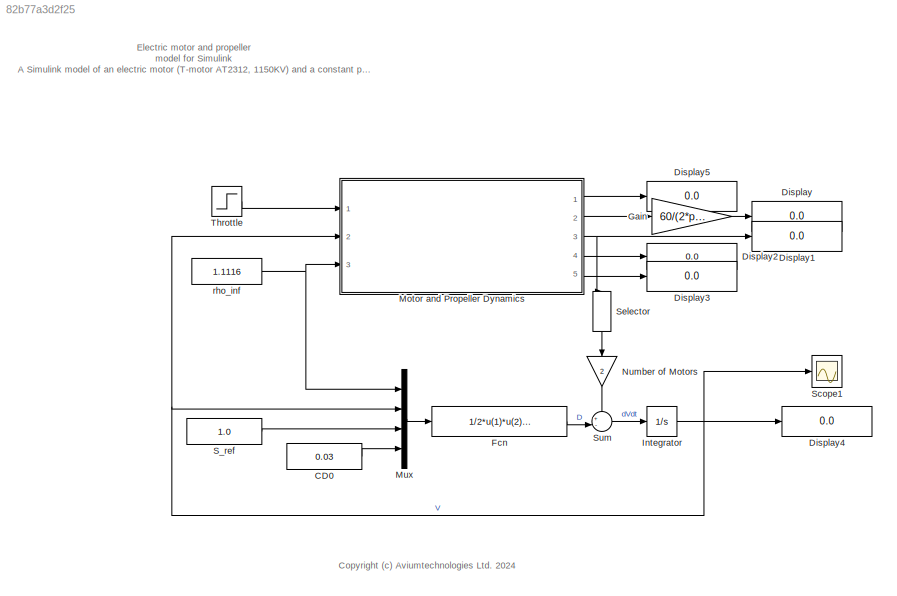
MODEL slx_82b77a3d2f25
KIND model
CONFIG AbsTol = auto
CONFIG EnableMultiTasking = off
CONFIG FixedStep = 0.01
CONFIG MaxStep = auto
CONFIG MinStep = auto
CONFIG RelTol = 1e-3
CONFIG SampleTimeConstraint = Unconstrained
CONFIG SolverName = ode1
CONFIG StartTime = 0.0
CONFIG StopTime = 20
BLOCK [Constant] CD0
  Value = 0.03
BLOCK [Display] Display
  Decimation = 1
  Ports = [1]
BLOCK [Display] Display1
  Decimation = 1
  Ports = [1]
BLOCK [Display] Display2
  Decimation = 1
  Ports = [1]
BLOCK [Display] Display3
  Decimation = 1
  Ports = [1]
BLOCK [Display] Display4
  Decimation = 1
  Ports = [1]
BLOCK [Display] Display5
  Decimation = 1
  Ports = [1]
BLOCK [Fcn] Fcn
  Expr = 1/2*u(1)*u(2)^2*u(3)*u(4)
BLOCK [Gain] Gain
  Gain = 60/(2*pi)
BLOCK [Integrator] Integrator
  Ports = [1, 1]
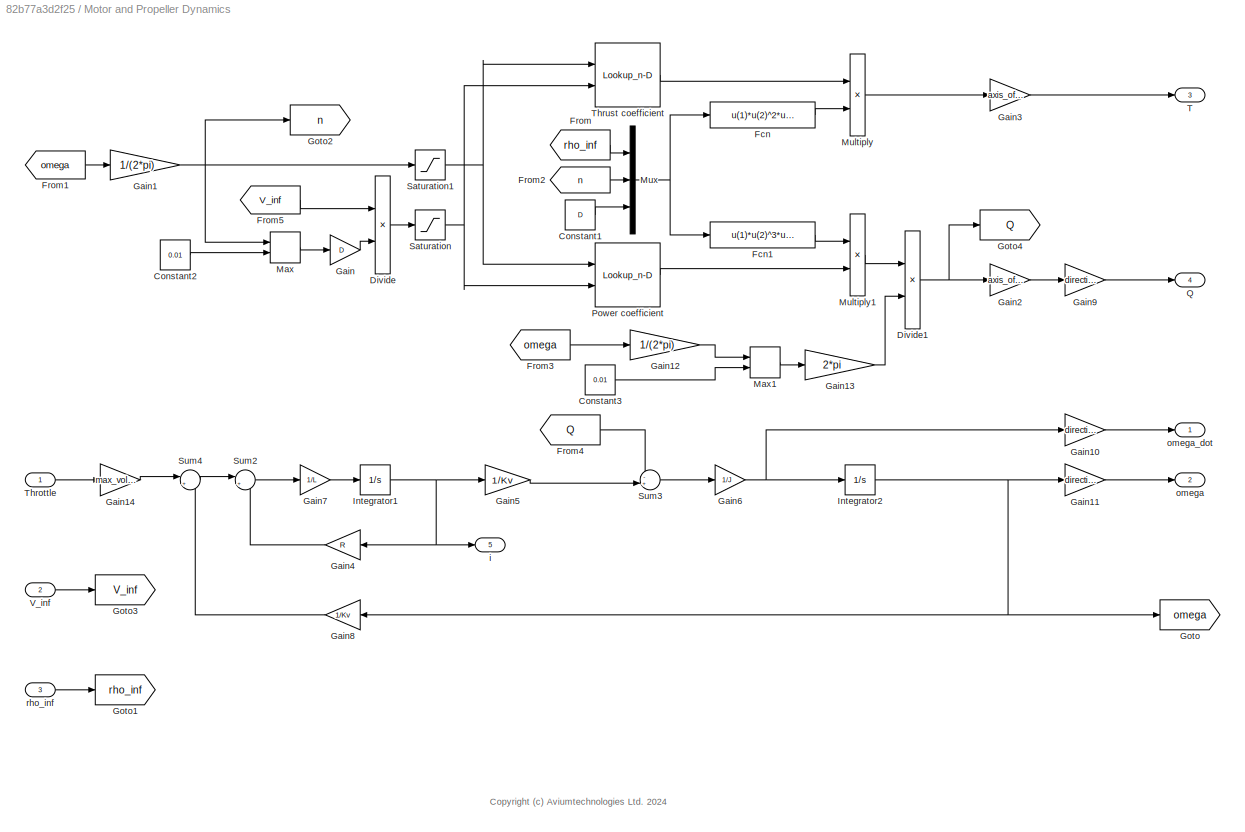
BLOCK [SubSystem] Motor and Propeller Dynamics
  Ports = [3, 5]
  RequestExecContextInheritance = off
BLOCK [Constant] Motor and Propeller Dynamics/Constant1
  Value = D
BLOCK [Constant] Motor and Propeller Dynamics/Constant2
  Value = 0.01
BLOCK [Constant] Motor and Propeller Dynamics/Constant3
  Value = 0.01
BLOCK [Product] Motor and Propeller Dynamics/Divide
  Inputs = */
  Ports = [2, 1]
BLOCK [Product] Motor and Propeller Dynamics/Divide1
  Inputs = */
  Ports = [2, 1]
BLOCK [Fcn] Motor and Propeller Dynamics/Fcn
  Expr = u(1)*u(2)^2*u(3)^4
BLOCK [Fcn] Motor and Propeller Dynamics/Fcn1
  Expr = u(1)*u(2)^3*u(3)^5
BLOCK [From] Motor and Propeller Dynamics/From
  GotoTag = rho_inf
BLOCK [From] Motor and Propeller Dynamics/From1
  GotoTag = omega
BLOCK [From] Motor and Propeller Dynamics/From2
  GotoTag = n
BLOCK [From] Motor and Propeller Dynamics/From3
  GotoTag = omega
BLOCK [From] Motor and Propeller Dynamics/From4
  GotoTag = Q
BLOCK [From] Motor and Propeller Dynamics/From5
  GotoTag = V_inf
BLOCK [Gain] Motor and Propeller Dynamics/Gain
  Gain = D
BLOCK [Gain] Motor and Propeller Dynamics/Gain1
  Gain = 1/(2*pi)
BLOCK [Gain] Motor and Propeller Dynamics/Gain10
  Gain = direction_of_rotation
BLOCK [Gain] Motor and Propeller Dynamics/Gain11
  Gain = direction_of_rotation
BLOCK [Gain] Motor and Propeller Dynamics/Gain12
  Gain = 1/(2*pi)
BLOCK [Gain] Motor and Propeller Dynamics/Gain13
  Gain = 2*pi
BLOCK [Gain] Motor and Propeller Dynamics/Gain14
  Gain = max_voltage
BLOCK [Gain] Motor and Propeller Dynamics/Gain2
  Gain = axis_of_rotation
BLOCK [Gain] Motor and Propeller Dynamics/Gain3
  Gain = axis_of_rotation
BLOCK [Gain] Motor and Propeller Dynamics/Gain4
  Gain = R
BLOCK [Gain] Motor and Propeller Dynamics/Gain5
  Gain = 1/Kv
BLOCK [Gain] Motor and Propeller Dynamics/Gain6
  Gain = 1/J
BLOCK [Gain] Motor and Propeller Dynamics/Gain7
  Gain = 1/L
BLOCK [Gain] Motor and Propeller Dynamics/Gain8
  Gain = 1/Kv
BLOCK [Gain] Motor and Propeller Dynamics/Gain9
  Gain = direction_of_rotation
BLOCK [Goto] Motor and Propeller Dynamics/Goto
  GotoTag = omega
BLOCK [Goto] Motor and Propeller Dynamics/Goto1
  GotoTag = rho_inf
BLOCK [Goto] Motor and Propeller Dynamics/Goto2
  GotoTag = n
BLOCK [Goto] Motor and Propeller Dynamics/Goto3
  GotoTag = V_inf
BLOCK [Goto] Motor and Propeller Dynamics/Goto4
  GotoTag = Q
BLOCK [Integrator] Motor and Propeller Dynamics/Integrator1
  InitialCondition = i0
  Ports = [1, 1]
BLOCK [Integrator] Motor and Propeller Dynamics/Integrator2
  InitialCondition = omega0
  Ports = [1, 1]
BLOCK [MinMax] Motor and Propeller Dynamics/Max
  Function = max
  Inputs = 2
  Ports = [2, 1]
BLOCK [MinMax] Motor and Propeller Dynamics/Max1
  Function = max
  Inputs = 2
  Ports = [2, 1]
BLOCK [Product] Motor and Propeller Dynamics/Multiply
  Ports = [2, 1]
BLOCK [Product] Motor and Propeller Dynamics/Multiply1
  Ports = [2, 1]
BLOCK [Mux] Motor and Propeller Dynamics/Mux
  DisplayOption = bar
  Inputs = 3
  Ports = [3, 1]
BLOCK [Lookup_n-D] Motor and Propeller Dynamics/Power coefficient
  BreakpointsForDimension1 = omega_lookup
  BreakpointsForDimension2 = J_lookup
  DiagnosticForOutOfRangeInput = Warning
  InputPortMap = u0,u1
  InternalRulePriority = Speed
  Ports = [2, 1]
  RndMeth = Simplest
  Table = CP_lookup
BLOCK [Outport] Motor and Propeller Dynamics/Q
  Port = 4
  VectorParamsAs1DForOutWhenUnconnected = off
BLOCK [Saturate] Motor and Propeller Dynamics/Saturation
  LowerLimit = min(J_lookup)
  UpperLimit = max(J_lookup)
BLOCK [Saturate] Motor and Propeller Dynamics/Saturation1
  LowerLimit = min(omega_lookup)
  UpperLimit = max(omega_lookup)
BLOCK [Sum] Motor and Propeller Dynamics/Sum2
  Inputs = |+-
  Ports = [2, 1]
BLOCK [Sum] Motor and Propeller Dynamics/Sum3
  Inputs = -+|
  Ports = [2, 1]
BLOCK [Sum] Motor and Propeller Dynamics/Sum4
  Inputs = |+-
  Ports = [2, 1]
BLOCK [Outport] Motor and Propeller Dynamics/T
  Port = 3
  VectorParamsAs1DForOutWhenUnconnected = off
BLOCK [Inport] Motor and Propeller Dynamics/Throttle
BLOCK [Lookup_n-D] Motor and Propeller Dynamics/Thrust coefficient
  BreakpointsForDimension1 = omega_lookup
  BreakpointsForDimension2 = J_lookup
  DiagnosticForOutOfRangeInput = Warning
  InputPortMap = u0,u1
  InternalRulePriority = Speed
  Ports = [2, 1]
  RndMeth = Simplest
  Table = CT_lookup
BLOCK [Inport] Motor and Propeller Dynamics/V_inf
  Port = 2
BLOCK [Outport] Motor and Propeller Dynamics/i
  Port = 5
  VectorParamsAs1DForOutWhenUnconnected = off
BLOCK [Outport] Motor and Propeller Dynamics/omega
  Port = 2
  VectorParamsAs1DForOutWhenUnconnected = off
BLOCK [Outport] Motor and Propeller Dynamics/omega_dot
  VectorParamsAs1DForOutWhenUnconnected = off
BLOCK [Inport] Motor and Propeller Dynamics/rho_inf
  Port = 3
BLOCK [Mux] Mux
  DisplayOption = bar
  Ports = [4, 1]
BLOCK [Gain] Number of Motors
  Gain = 2
  NameLocation = left
BLOCK [Constant] S_ref
  Value = 1.0
BLOCK [Scope] Scope1
  Floating = off
  NumInputPorts = 1
  Ports = [1]
  ScopeSpecificationString = Simulink.scopes.TimeScopeBlockCfg('CurrentConfiguration', extmgr.ConfigurationSet(extmgr.Configuration('Core','General UI',true),extmgr.Configuration('Core','Source UI',true),extmgr.Configuration('Sources','WiredSimulink',true,'DataLoggingVariableName','ScopeData1'),extmgr.Configuration('Visuals','Time Domain',true,'SerializedDisplays',{struct('MinYLimReal','-4.92697','MaxYLimReal','44.34277','YLa...<+1418ch>
BLOCK [Selector] Selector
  IndexMode = Zero-based
  IndexOptions = Index vector (dialog)
  Indices = 0
  InputPortWidth = 3
  NameLocation = left
  OutputSizes = 1
  Ports = [1, 1]
BLOCK [Sum] Sum
  Inputs = +-|
  Ports = [2, 1]
BLOCK [Step] Throttle
  SampleTime = 0
BLOCK [Constant] rho_inf
  Value = 1.1116
ANNOTATION (root): Electric motor and propeller model for Simulink A Simulink model of an electric motor (T-motor AT2312, 1150KV) and a constant pitch propeller (APC 12x8).
ANNOTATION (root): <copyright redacted>
ANNOTATION Motor and Propeller Dynamics: <copyright redacted>
LINE CD0:1 -> Mux:4
LINE Fcn:1 -> Sum:2
LINE Gain:1 -> Display:1
NET Integrator:1 -> Display4:1, Motor and Propeller Dynamics:2, Mux:2, Scope1:1
LINE Motor and Propeller Dynamics/Constant1:1 -> Motor and Propeller Dynamics/Mux:3
LINE Motor and Propeller Dynamics/Constant2:1 -> Motor and Propeller Dynamics/Max:2
LINE Motor and Propeller Dynamics/Constant3:1 -> Motor and Propeller Dynamics/Max1:2
NET Motor and Propeller Dynamics/Divide1:1 -> Motor and Propeller Dynamics/Gain2:1, Motor and Propeller Dynamics/Goto4:1
LINE Motor and Propeller Dynamics/Divide:1 -> Motor and Propeller Dynamics/Saturation:1
LINE Motor and Propeller Dynamics/Fcn1:1 -> Motor and Propeller Dynamics/Multiply1:1
LINE Motor and Propeller Dynamics/Fcn:1 -> Motor and Propeller Dynamics/Multiply:2
LINE Motor and Propeller Dynamics/From1:1 -> Motor and Propeller Dynamics/Gain1:1
LINE Motor and Propeller Dynamics/From2:1 -> Motor and Propeller Dynamics/Mux:2
LINE Motor and Propeller Dynamics/From3:1 -> Motor and Propeller Dynamics/Gain12:1
LINE Motor and Propeller Dynamics/From4:1 -> Motor and Propeller Dynamics/Sum3:1
LINE Motor and Propeller Dynamics/From5:1 -> Motor and Propeller Dynamics/Divide:1
LINE Motor and Propeller Dynamics/From:1 -> Motor and Propeller Dynamics/Mux:1
LINE Motor and Propeller Dynamics/Gain10:1 -> Motor and Propeller Dynamics/omega_dot:1
LINE Motor and Propeller Dynamics/Gain11:1 -> Motor and Propeller Dynamics/omega:1
LINE Motor and Propeller Dynamics/Gain12:1 -> Motor and Propeller Dynamics/Max1:1
LINE Motor and Propeller Dynamics/Gain13:1 -> Motor and Propeller Dynamics/Divide1:2
LINE Motor and Propeller Dynamics/Gain14:1 -> Motor and Propeller Dynamics/Sum4:1
NET Motor and Propeller Dynamics/Gain1:1 -> Motor and Propeller Dynamics/Goto2:1, Motor and Propeller Dynamics/Max:1, Motor and Propeller Dynamics/Saturation1:1
LINE Motor and Propeller Dynamics/Gain2:1 -> Motor and Propeller Dynamics/Gain9:1
LINE Motor and Propeller Dynamics/Gain3:1 -> Motor and Propeller Dynamics/T:1
LINE Motor and Propeller Dynamics/Gain4:1 -> Motor and Propeller Dynamics/Sum2:2
LINE Motor and Propeller Dynamics/Gain5:1 -> Motor and Propeller Dynamics/Sum3:2
NET Motor and Propeller Dynamics/Gain6:1 -> Motor and Propeller Dynamics/Gain10:1, Motor and Propeller Dynamics/Integrator2:1
LINE Motor and Propeller Dynamics/Gain7:1 -> Motor and Propeller Dynamics/Integrator1:1
LINE Motor and Propeller Dynamics/Gain8:1 -> Motor and Propeller Dynamics/Sum4:2
LINE Motor and Propeller Dynamics/Gain9:1 -> Motor and Propeller Dynamics/Q:1
LINE Motor and Propeller Dynamics/Gain:1 -> Motor and Propeller Dynamics/Divide:2
NET Motor and Propeller Dynamics/Integrator1:1 -> Motor and Propeller Dynamics/Gain4:1, Motor and Propeller Dynamics/Gain5:1, Motor and Propeller Dynamics/i:1
NET Motor and Propeller Dynamics/Integrator2:1 -> Motor and Propeller Dynamics/Gain11:1, Motor and Propeller Dynamics/Gain8:1, Motor and Propeller Dynamics/Goto:1
LINE Motor and Propeller Dynamics/Max1:1 -> Motor and Propeller Dynamics/Gain13:1
LINE Motor and Propeller Dynamics/Max:1 -> Motor and Propeller Dynamics/Gain:1
LINE Motor and Propeller Dynamics/Multiply1:1 -> Motor and Propeller Dynamics/Divide1:1
LINE Motor and Propeller Dynamics/Multiply:1 -> Motor and Propeller Dynamics/Gain3:1
NET Motor and Propeller Dynamics/Mux:1 -> Motor and Propeller Dynamics/Fcn1:1, Motor and Propeller Dynamics/Fcn:1
LINE Motor and Propeller Dynamics/Power coefficient:1 -> Motor and Propeller Dynamics/Multiply1:2
NET Motor and Propeller Dynamics/Saturation1:1 -> Motor and Propeller Dynamics/Power coefficient:1, Motor and Propeller Dynamics/Thrust coefficient:1
NET Motor and Propeller Dynamics/Saturation:1 -> Motor and Propeller Dynamics/Power coefficient:2, Motor and Propeller Dynamics/Thrust coefficient:2
LINE Motor and Propeller Dynamics/Sum2:1 -> Motor and Propeller Dynamics/Gain7:1
LINE Motor and Propeller Dynamics/Sum3:1 -> Motor and Propeller Dynamics/Gain6:1
LINE Motor and Propeller Dynamics/Sum4:1 -> Motor and Propeller Dynamics/Sum2:1
LINE Motor and Propeller Dynamics/Throttle:1 -> Motor and Propeller Dynamics/Gain14:1
LINE Motor and Propeller Dynamics/Thrust coefficient:1 -> Motor and Propeller Dynamics/Multiply:1
LINE Motor and Propeller Dynamics/V_inf:1 -> Motor and Propeller Dynamics/Goto3:1
LINE Motor and Propeller Dynamics/rho_inf:1 -> Motor and Propeller Dynamics/Goto1:1
LINE Motor and Propeller Dynamics:1 -> Display5:1
LINE Motor and Propeller Dynamics:2 -> Gain:1
NET Motor and Propeller Dynamics:3 -> Display1:1, Selector:1
LINE Motor and Propeller Dynamics:4 -> Display2:1
LINE Motor and Propeller Dynamics:5 -> Display3:1
LINE Mux:1 -> Fcn:1
LINE Number of Motors:1 -> Sum:1
LINE S_ref:1 -> Mux:3
LINE Selector:1 -> Number of Motors:1
LINE Sum:1 -> Integrator:1
LINE Throttle:1 -> Motor and Propeller Dynamics:1
NET rho_inf:1 -> Motor and Propeller Dynamics:3, Mux:1
note: NET lines group one-source signal fan-out (src -> all destinations, sorted); 1:1 wires keep LINE
